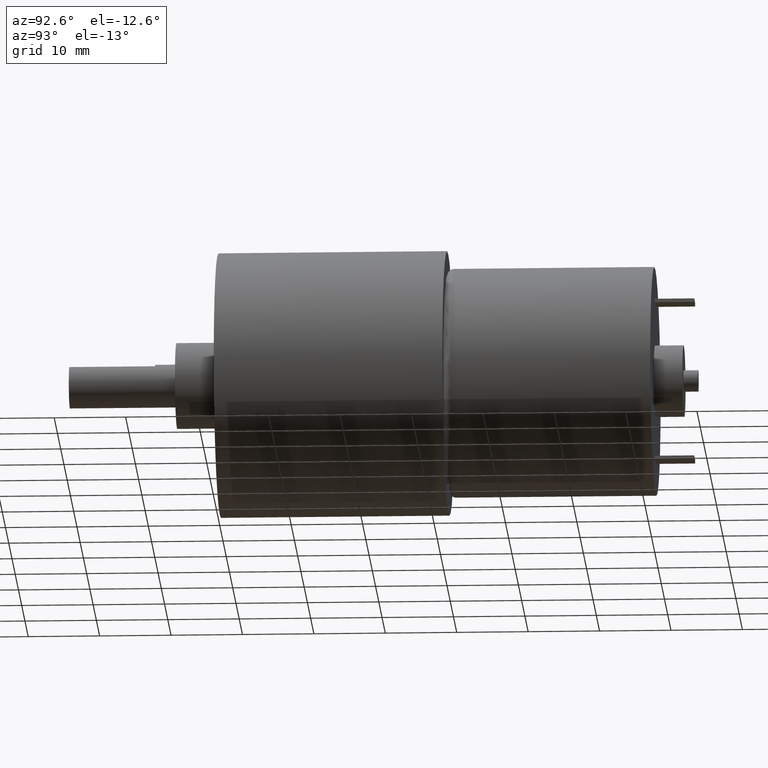
[diagram: clean part render]
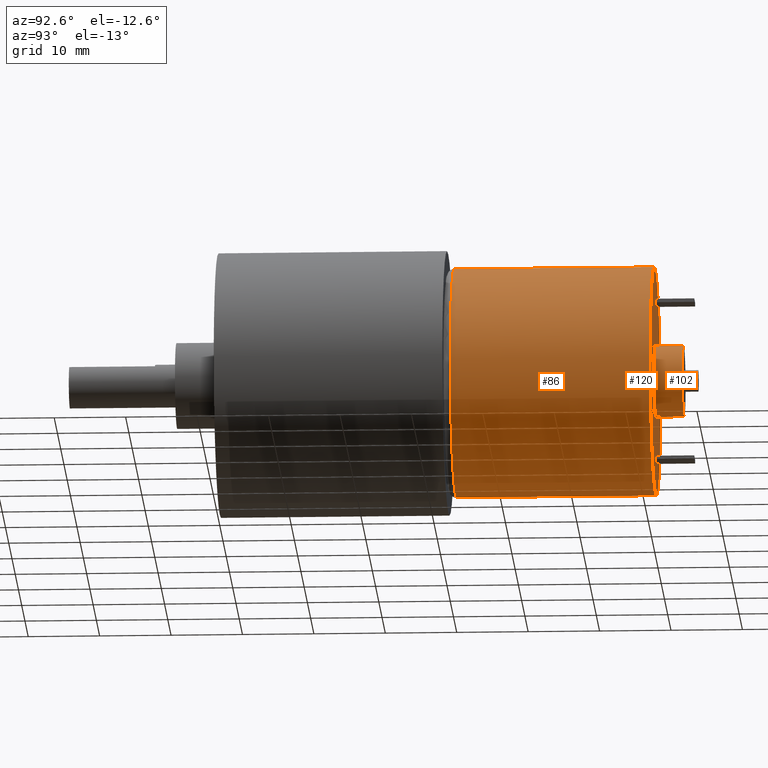
[diagram: same view with one multi-face feature highlighted, each face labeled with its STEP entity id]
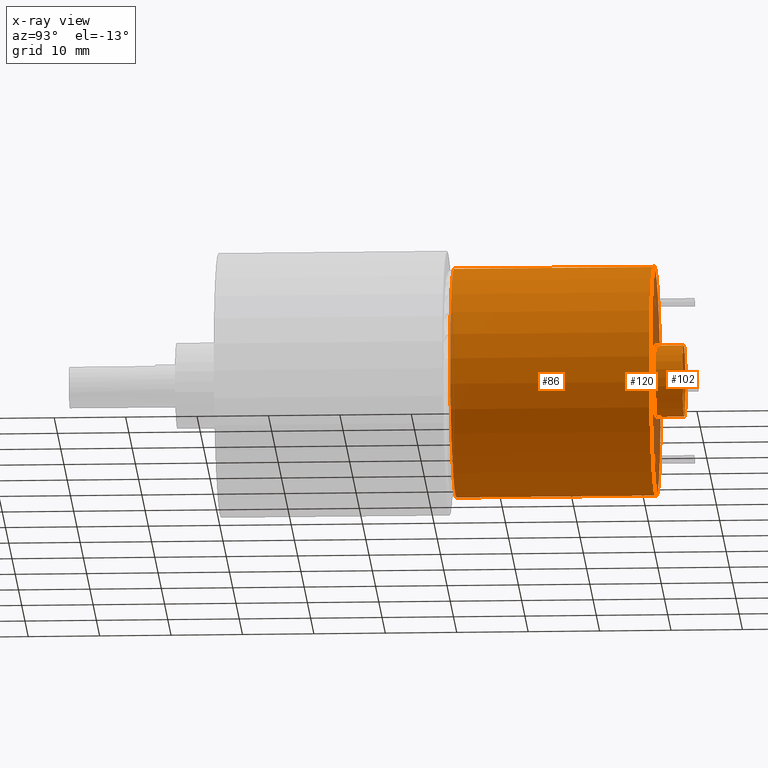
[diagram: x-ray of the same camera — body ghosted, the whole feature saturated]
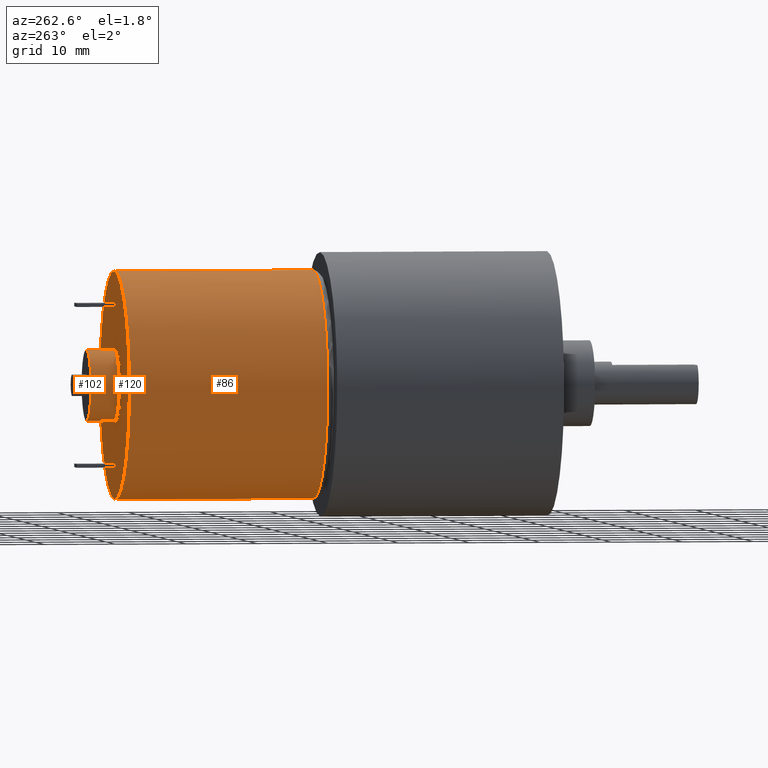
[diagram: same view with one multi-face feature highlighted, each face labeled with its STEP entity id]
A machine part, auxiliary view. The highlighted faces form ONE feature: a stepped (counterbored) hole: 2 coaxial cylindrical walls of radii 5 -> 16 mm joined by 1 annular planar shoulder face(s). The faces share edges in the B-rep.
The next image is the same camera in x-ray: the body ghosted and the whole hole feature saturated, so the bore chain is visible through the body.
A second angle (auxiliary view) of the same feature is appended — it is thin or edge-on in the first view.
Their STEP definitions:
[1] entity #86 (Cylinder):
#86 = ADVANCED_FACE( '', ( #196, #197 ), #198, .T. );
#196 = FACE_OUTER_BOUND( '', #343, .T. );
#197 = FACE_OUTER_BOUND( '', #344, .T. );
#198 = CYLINDRICAL_SURFACE( '', #345, 16.0000000000000 );
#343 = EDGE_LOOP( '', ( #523 ) );
#344 = EDGE_LOOP( '', ( #524 ) );
#345 = AXIS2_PLACEMENT_3D( '', #525, #526, #527 );
#523 = ORIENTED_EDGE( '', *, *, #743, .F. );
#524 = ORIENTED_EDGE( '', *, *, #722, .T. );
#525 = CARTESIAN_POINT( '', ( 0.000000000000000, 92.6621544602951, -1.08305661972314E-016 ) );
#526 = DIRECTION( '', ( -0.000000000000000, -1.00000000000000, 1.16882304974597E-018 ) );
#527 = DIRECTION( '', ( 0.000000000000000, 1.16882304974597E-018, 1.00000000000000 ) );
#722 = EDGE_CURVE( '', #827, #827, #828, .T. );
#743 = EDGE_CURVE( '', #860, #860, #861, .T. );
#827 = VERTEX_POINT( '', #974 );
#828 = CIRCLE( '', #975, 16.0000000000000 );
#860 = VERTEX_POINT( '', #1012 );
#861 = CIRCLE( '', #1013, 16.0000000000000 );
#974 = CARTESIAN_POINT( '', ( 0.000000000000000, 33.0000000000000, 16.0000000000000 ) );
#975 = AXIS2_PLACEMENT_3D( '', #1114, #1115, #1116 );
#1012 = CARTESIAN_POINT( '', ( 0.000000000000000, 61.0000000000000, 16.0000000000000 ) );
#1013 = AXIS2_PLACEMENT_3D( '', #1146, #1147, #1148 );
#1114 = CARTESIAN_POINT( '', ( 0.000000000000000, 33.0000000000000, -3.85711606416168E-017 ) );
#1115 = DIRECTION( '', ( 0.000000000000000, 1.00000000000000, -1.16882304974597E-018 ) );
#1116 = DIRECTION( '', ( 0.000000000000000, 1.16882304974597E-018, 1.00000000000000 ) );
#1146 = CARTESIAN_POINT( '', ( 0.000000000000000, 61.0000000000000, -7.12982060345041E-017 ) );
#1147 = DIRECTION( '', ( 0.000000000000000, 1.00000000000000, -1.16882304974597E-018 ) );
#1148 = DIRECTION( '', ( 0.000000000000000, 1.16882304974597E-018, 1.00000000000000 ) );
[2] entity #102 (Cylinder):
#102 = ADVANCED_FACE( '', ( #225, #226 ), #227, .T. );
#225 = FACE_OUTER_BOUND( '', #372, .T. );
#226 = FACE_OUTER_BOUND( '', #373, .T. );
#227 = CYLINDRICAL_SURFACE( '', #374, 5.00000000000000 );
#372 = EDGE_LOOP( '', ( #571 ) );
#373 = EDGE_LOOP( '', ( #572 ) );
#374 = AXIS2_PLACEMENT_3D( '', #573, #574, #575 );
#571 = ORIENTED_EDGE( '', *, *, #750, .F. );
#572 = ORIENTED_EDGE( '', *, *, #759, .T. );
#573 = CARTESIAN_POINT( '', ( 0.000000000000000, 92.6621544602951, -1.08305661972314E-016 ) );
#574 = DIRECTION( '', ( -0.000000000000000, -1.00000000000000, 1.16882304974597E-018 ) );
#575 = DIRECTION( '', ( 0.000000000000000, 1.16882304974597E-018, 1.00000000000000 ) );
#750 = EDGE_CURVE( '', #870, #870, #871, .T. );
#759 = EDGE_CURVE( '', #883, #883, #884, .T. );
#870 = VERTEX_POINT( '', #1022 );
#871 = CIRCLE( '', #1023, 5.00000000000000 );
#883 = VERTEX_POINT( '', #1037 );
#884 = CIRCLE( '', #1038, 5.00000000000000 );
#1022 = CARTESIAN_POINT( '', ( 0.000000000000000, 65.0000000000000, 5.00000000000000 ) );
#1023 = AXIS2_PLACEMENT_3D( '', #1155, #1156, #1157 );
#1037 = CARTESIAN_POINT( '', ( 0.000000000000000, 61.0000000000000, 5.00000000000000 ) );
#1038 = AXIS2_PLACEMENT_3D( '', #1166, #1167, #1168 );
#1155 = CARTESIAN_POINT( '', ( 0.000000000000000, 65.0000000000000, -7.59734982334880E-017 ) );
#1156 = DIRECTION( '', ( 0.000000000000000, 1.00000000000000, -1.16882304974597E-018 ) );
#1157 = DIRECTION( '', ( 0.000000000000000, 1.16882304974597E-018, 1.00000000000000 ) );
#1166 = CARTESIAN_POINT( '', ( 0.000000000000000, 61.0000000000000, -7.12982060345041E-017 ) );
#1167 = DIRECTION( '', ( 0.000000000000000, 1.00000000000000, -1.16882304974597E-018 ) );
#1168 = DIRECTION( '', ( 0.000000000000000, 1.16882304974597E-018, 1.00000000000000 ) );
[3] entity #120 (Plane):
#120 = ADVANCED_FACE( '', ( #261, #262, #263, #264 ), #265, .F. );
#261 = FACE_OUTER_BOUND( '', #408, .T. );
#262 = FACE_BOUND( '', #409, .T. );
#263 = FACE_BOUND( '', #410, .T. );
#264 = FACE_BOUND( '', #411, .T. );
#265 = PLANE( '', #412 );
#408 = EDGE_LOOP( '', ( #638 ) );
#409 = EDGE_LOOP( '', ( #639 ) );
#410 = EDGE_LOOP( '', ( #640, #641, #642, #643 ) );
#411 = EDGE_LOOP( '', ( #644, #645, #646, #647 ) );
#412 = AXIS2_PLACEMENT_3D( '', #648, #649, #650 );
#638 = ORIENTED_EDGE( '', *, *, #743, .T. );
#639 = ORIENTED_EDGE( '', *, *, #759, .F. );
#640 = ORIENTED_EDGE( '', *, *, #725, .T. );
#641 = ORIENTED_EDGE( '', *, *, #703, .T. );
#642 = ORIENTED_EDGE( '', *, *, #754, .T. );
#643 = ORIENTED_EDGE( '', *, *, #775, .T. );
#644 = ORIENTED_EDGE( '', *, *, #731, .F. );
#645 = ORIENTED_EDGE( '', *, *, #771, .F. );
#646 = ORIENTED_EDGE( '', *, *, #780, .F. );
#647 = ORIENTED_EDGE( '', *, *, #715, .F. );
#648 = CARTESIAN_POINT( '', ( 0.000000000000000, 61.0000000000000, -16.0000000000000 ) );
#649 = DIRECTION( '', ( 0.000000000000000, -1.00000000000000, 1.16882304974597E-018 ) );
#650 = DIRECTION( '', ( 0.000000000000000, -1.16882304974597E-018, -1.00000000000000 ) );
#703 = EDGE_CURVE( '', #795, #796, #797, .T. );
#715 = EDGE_CURVE( '', #815, #816, #817, .T. );
#725 = EDGE_CURVE( '', #832, #795, #833, .T. );
#731 = EDGE_CURVE( '', #841, #815, #842, .T. );
#743 = EDGE_CURVE( '', #860, #860, #861, .T. );
#754 = EDGE_CURVE( '', #796, #876, #877, .T. );
#759 = EDGE_CURVE( '', #883, #883, #884, .T. );
#771 = EDGE_CURVE( '', #904, #841, #905, .T. );
#775 = EDGE_CURVE( '', #876, #832, #910, .T. );
#780 = EDGE_CURVE( '', #816, #904, #916, .T. );
#795 = VERTEX_POINT( '', #931 );
#796 = VERTEX_POINT( '', #932 );
#797 = LINE( '', #933, #934 );
#815 = VERTEX_POINT( '', #958 );
#816 = VERTEX_POINT( '', #959 );
#817 = LINE( '', #960, #961 );
#832 = VERTEX_POINT( '', #979 );
#833 = LINE( '', #980, #981 );
#841 = VERTEX_POINT( '', #990 );
#842 = LINE( '', #991, #992 );
#860 = VERTEX_POINT( '', #1012 );
#861 = CIRCLE( '', #1013, 16.0000000000000 );
#876 = VERTEX_POINT( '', #1028 );
#877 = LINE( '', #1029, #1030 );
#883 = VERTEX_POINT( '', #1037 );
#884 = CIRCLE( '', #1038, 5.00000000000000 );
#904 = VERTEX_POINT( '', #1062 );
#905 = LINE( '', #1063, #1064 );
#910 = LINE( '', #1071, #1072 );
#916 = LINE( '', #1078, #1079 );
#931 = CARTESIAN_POINT( '', ( -1.50000000000000, 61.0000000000000, -11.5000000000000 ) );
#932 = CARTESIAN_POINT( '', ( 1.50000000000000, 61.0000000000000, -11.5000000000000 ) );
#933 = CARTESIAN_POINT( '', ( -1.50000000000000, 61.0000000000000, -11.5000000000000 ) );
#934 = VECTOR( '', #1094, 1000.00000000000 );
#958 = CARTESIAN_POINT( '', ( 1.50000000000000, 61.0000000000000, 11.5000000000000 ) );
#959 = CARTESIAN_POINT( '', ( 1.50000000000000, 61.0000000000000, 11.0000000000000 ) );
#960 = CARTESIAN_POINT( '', ( 1.50000000000000, 61.0000000000000, 11.5000000000000 ) );
#961 = VECTOR( '', #1107, 1000.00000000000 );
#979 = CARTESIAN_POINT( '', ( -1.50000000000000, 61.0000000000000, -11.0000000000000 ) );
#980 = CARTESIAN_POINT( '', ( -1.50000000000000, 61.0000000000000, -11.0000000000000 ) );
#981 = VECTOR( '', #1120, 1000.00000000000 );
#990 = CARTESIAN_POINT( '', ( -1.50000000000000, 61.0000000000000, 11.5000000000000 ) );
#991 = CARTESIAN_POINT( '', ( -1.50000000000000, 61.0000000000000, 11.5000000000000 ) );
#992 = VECTOR( '', #1128, 1000.00000000000 );
#1012 = CARTESIAN_POINT( '', ( 0.000000000000000, 61.0000000000000, 16.0000000000000 ) );
#1013 = AXIS2_PLACEMENT_3D( '', #1146, #1147, #1148 );
#1028 = CARTESIAN_POINT( '', ( 1.50000000000000, 61.0000000000000, -11.0000000000000 ) );
#1029 = CARTESIAN_POINT( '', ( 1.50000000000000, 61.0000000000000, -11.5000000000000 ) );
#1030 = VECTOR( '', #1161, 1000.00000000000 );
#1037 = CARTESIAN_POINT( '', ( 0.000000000000000, 61.0000000000000, 5.00000000000000 ) );
#1038 = AXIS2_PLACEMENT_3D( '', #1166, #1167, #1168 );
#1062 = CARTESIAN_POINT( '', ( -1.50000000000000, 61.0000000000000, 11.0000000000000 ) );
#1063 = CARTESIAN_POINT( '', ( -1.50000000000000, 61.0000000000000, 11.0000000000000 ) );
#1064 = VECTOR( '', #1185, 1000.00000000000 );
#1071 = CARTESIAN_POINT( '', ( 1.50000000000000, 61.0000000000000, -11.0000000000000 ) );
#1072 = VECTOR( '', #1188, 1000.00000000000 );
#1078 = CARTESIAN_POINT( '', ( 1.50000000000000, 61.0000000000000, 11.0000000000000 ) );
#1079 = VECTOR( '', #1192, 1000.00000000000 );
#1094 = DIRECTION( '', ( 1.00000000000000, 0.000000000000000, 0.000000000000000 ) );
#1107 = DIRECTION( '', ( -8.67361737988406E-016, 0.000000000000000, -1.00000000000000 ) );
#1120 = DIRECTION( '', ( -1.30104260698259E-014, 0.000000000000000, -1.00000000000000 ) );
#1128 = DIRECTION( '', ( 1.00000000000000, 0.000000000000000, 0.000000000000000 ) );
#1146 = CARTESIAN_POINT( '', ( 0.000000000000000, 61.0000000000000, -7.12982060345041E-017 ) );
#1147 = DIRECTION( '', ( 0.000000000000000, 1.00000000000000, -1.16882304974597E-018 ) );
#1148 = DIRECTION( '', ( 0.000000000000000, 1.16882304974597E-018, 1.00000000000000 ) );
#1161 = DIRECTION( '', ( 1.43114686768085E-014, 0.000000000000000, 1.00000000000000 ) );
#1166 = CARTESIAN_POINT( '', ( 0.000000000000000, 61.0000000000000, -7.12982060345041E-017 ) );
#1167 = DIRECTION( '', ( 0.000000000000000, 1.00000000000000, -1.16882304974597E-018 ) );
#1168 = DIRECTION( '', ( 0.000000000000000, 1.16882304974597E-018, 1.00000000000000 ) );
#1185 = DIRECTION( '', ( 0.000000000000000, 0.000000000000000, 1.00000000000000 ) );
#1188 = DIRECTION( '', ( -1.00000000000000, 0.000000000000000, 0.000000000000000 ) );
#1192 = DIRECTION( '', ( -1.00000000000000, 0.000000000000000, 0.000000000000000 ) );